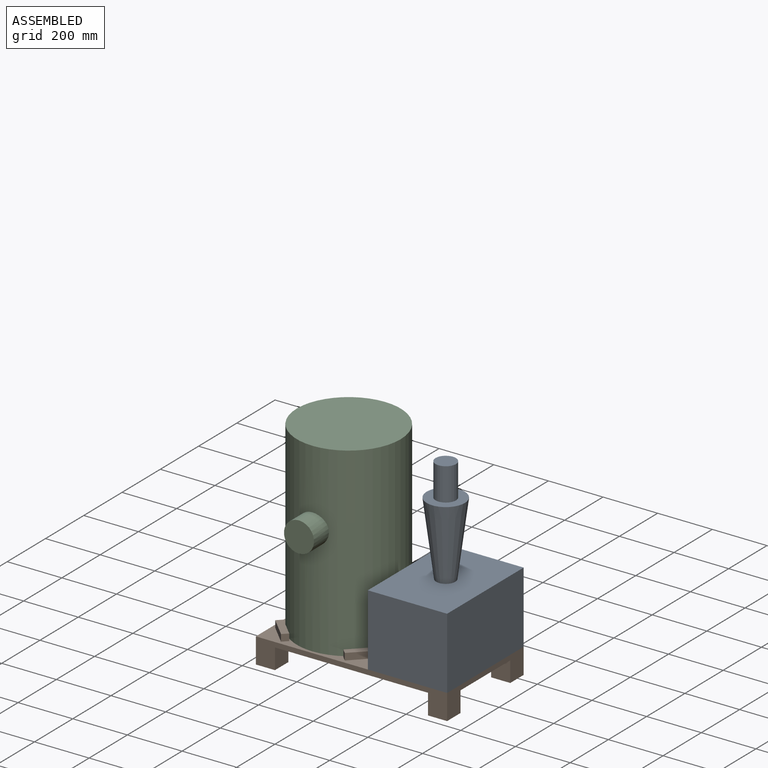
[diagram: assembled view]
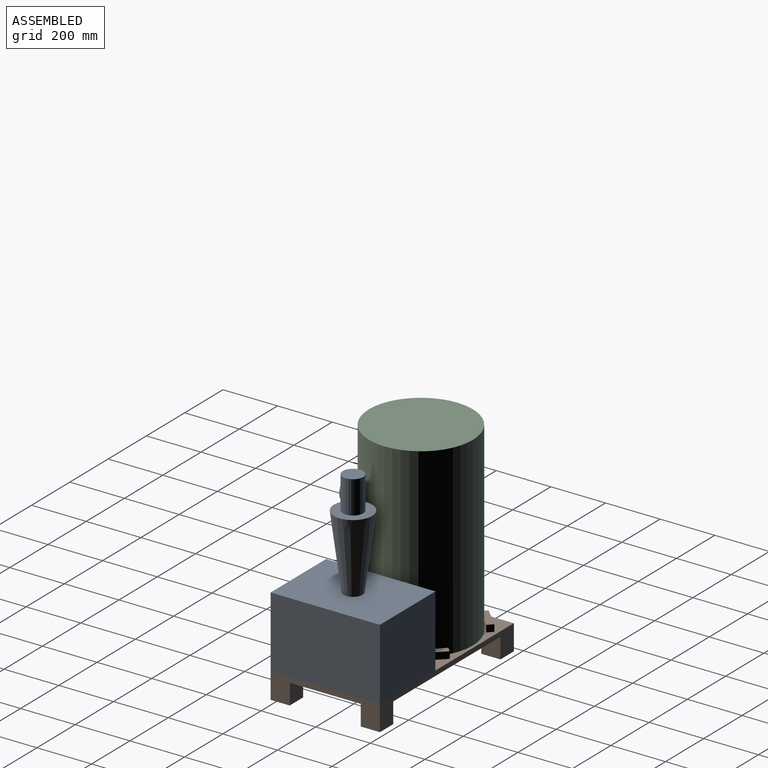
[diagram: assembled view, second angle]
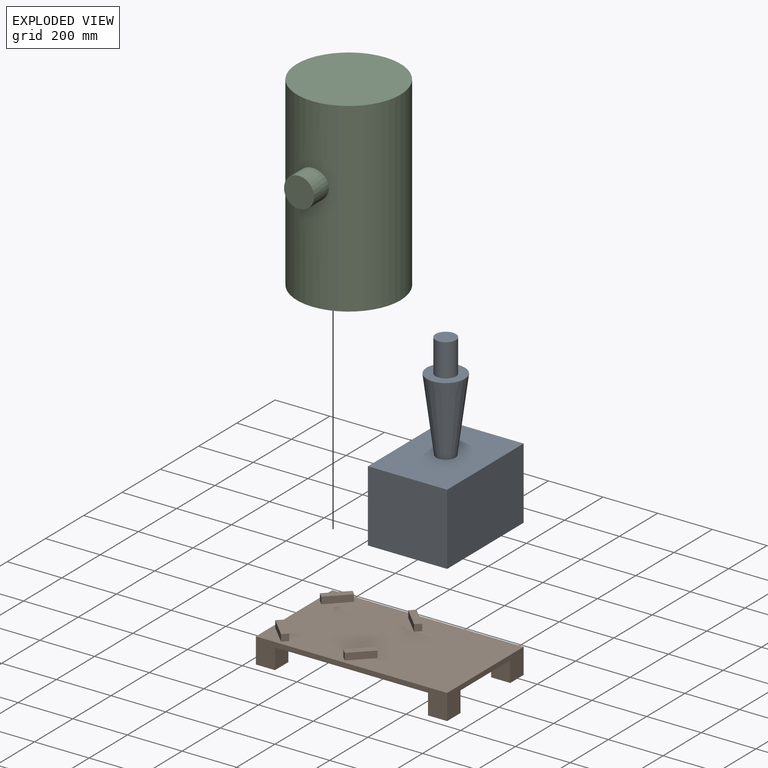
[diagram: exploded view]
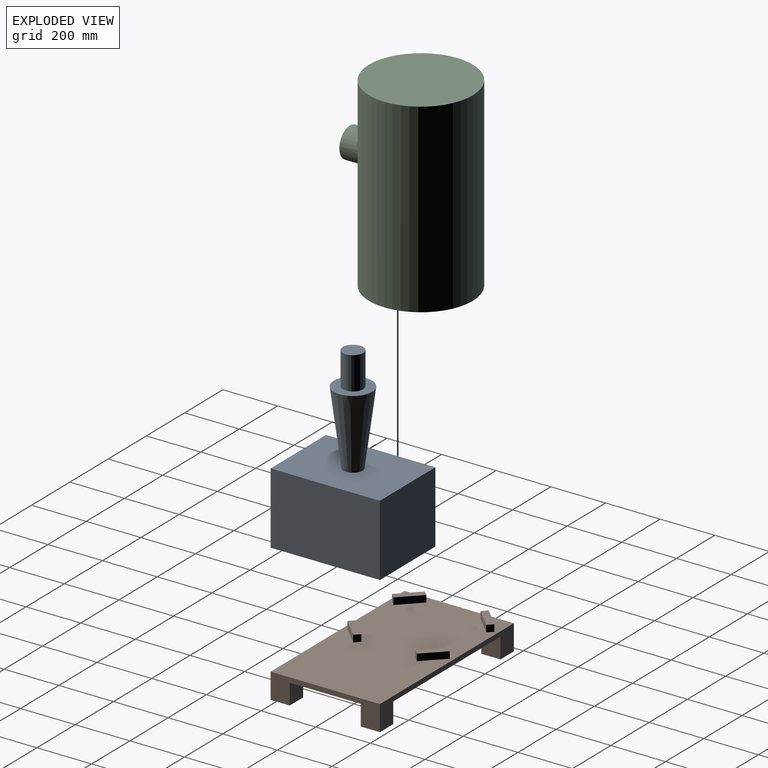
[diagram: exploded view, second angle]
ASSEMBLY  parts=3 mates=2
PART A: 10 faces, bbox 290x400x652 mm
  f0: plane 290x262mm, normal (0,1,0), area 75980mm2, adj f1,f3,f4,f5
  f1: plane 400x262mm, normal (-1,0,0), area 104800mm2, adj f0,f2,f4,f5
  f2: plane 290x262mm, normal (0,-1,0), area 75980mm2, adj f1,f3,f4,f5
  f3: plane 400x262mm, normal (1,0,0), area 104800mm2, adj f0,f2,f4,f5
  f4: plane 400x290mm, normal (0,0,1), area 112151.5mm2, adj f0,f1,f2,f3,f7
  f5: plane 400x290mm, normal (0,0,-1), area 116000mm2, adj f0,f1,f2,f3
  f6: plane 140x140mm, normal (0,0,1), area 10975.9mm2, adj f7,f8
  f7: cone r=70mm half-angle=7.4deg, axis (0,0,1), area 89809.3mm2, adj f4,f6
  f8: cylinder r=37.5mm len=120mm, axis (0,0,-1), area 28274.3mm2, adj f6,f9
  f9: plane 75x75mm, normal (0,0,1), area 4417.9mm2, adj f8
PART B: 38 faces, bbox 700x400x118 mm
  f0: plane 700x400mm, normal (0,0,1), area 270000mm2, adj f1,f2,f3,f4,f18,f19,f20,f21
  f1: plane 700x93mm, normal (0,1,0), area 23100mm2, adj f0,f2,f4,f5,f13,f14,f16,f17
  f2: plane 400x93mm, normal (-1,0,0), area 17700mm2, adj f0,f1,f3,f5,f6,f8,f15,f17
  f3: plane 700x93mm, normal (0,-1,0), area 23100mm2, adj f0,f2,f4,f5,f7,f8,f10,f11
  f4: plane 400x93mm, normal (1,0,0), area 17700mm2, adj f0,f1,f3,f5,f9,f11,f12,f14
  f5: plane 700x400mm, normal (0,0,-1), area 260400mm2, adj f1,f2,f3,f4,f6,f7,f9,f10
  f6: plane 75x70mm, normal (0,1,0), area 5250mm2, adj f2,f5,f7,f8
  f7: plane 75x70mm, normal (1,0,0), area 5250mm2, adj f3,f5,f6,f8
  f8: plane 70x70mm, normal (0,0,-1), area 4900mm2, adj f2,f3,f6,f7
  f9: plane 75x70mm, normal (0,1,0), area 5250mm2, adj f4,f5,f10,f11
  f10: plane 75x70mm, normal (-1,0,0), area 5250mm2, adj f3,f5,f9,f11
  f11: plane 70x70mm, normal (0,0,-1), area 4900mm2, adj f3,f4,f9,f10
  f12: plane 75x70mm, normal (0,-1,0), area 5250mm2, adj f4,f5,f13,f14
  f13: plane 75x70mm, normal (-1,0,0), area 5250mm2, adj f1,f5,f12,f14
  f14: plane 70x70mm, normal (0,0,-1), area 4900mm2, adj f1,f4,f12,f13
  f15: plane 75x70mm, normal (0,-1,0), area 5250mm2, adj f2,f5,f16,f17
  f16: plane 75x70mm, normal (1,0,0), area 5250mm2, adj f1,f5,f15,f17
  f17: plane 70x70mm, normal (0,0,-1), area 4900mm2, adj f1,f2,f15,f16
  f18: plane 70.71x70.71mm, normal (0.71,-0.71,0), area 2500mm2, adj f0,f19,f21,f22
  f19: plane 25x17.68mm, normal (0.71,0.71,0), area 625mm2, adj f0,f18,f20,f22
  f20: plane 70.71x70.71mm, normal (-0.71,0.71,0), area 2500mm2, adj f0,f19,f21,f22
  f21: plane 25x17.68mm, normal (-0.71,-0.71,0), area 625mm2, adj f0,f18,f20,f22
  f22: plane 88.39x88.39mm, normal (0,0,1), area 2500mm2, adj f18,f19,f20,f21
  f23: plane 25x17.68mm, normal (-0.71,0.71,0), area 625mm2, adj f0,f24,f26,f27
  f24: plane 70.71x70.71mm, normal (-0.71,-0.71,0), area 2500mm2, adj f0,f23,f25,f27
  f25: plane 25x17.68mm, normal (0.71,-0.71,0), area 625mm2, adj f0,f24,f26,f27
  f26: plane 70.71x70.71mm, normal (0.71,0.71,0), area 2500mm2, adj f0,f23,f25,f27
  f27: plane 88.39x88.39mm, normal (0,0,1), area 2500mm2, adj f23,f24,f25,f26
  f28: plane 25x17.68mm, normal (0.71,0.71,0), area 625mm2, adj f0,f29,f31,f32
  f29: plane 70.71x70.71mm, normal (-0.71,0.71,0), area 2500mm2, adj f0,f28,f30,f32
  f30: plane 25x17.68mm, normal (-0.71,-0.71,0), area 625mm2, adj f0,f29,f31,f32
  f31: plane 70.71x70.71mm, normal (0.71,-0.71,0), area 2500mm2, adj f0,f28,f30,f32
  f32: plane 88.39x88.39mm, normal (0,0,1), area 2500mm2, adj f28,f29,f30,f31
  f33: plane 70.71x70.71mm, normal (0.71,0.71,0), area 2500mm2, adj f0,f34,f36,f37
  f34: plane 25x17.68mm, normal (-0.71,0.71,0), area 625mm2, adj f0,f33,f35,f37
  f35: plane 70.71x70.71mm, normal (-0.71,-0.71,0), area 2500mm2, adj f0,f34,f36,f37
  f36: plane 25x17.68mm, normal (0.71,-0.71,0), area 625mm2, adj f0,f33,f35,f37
  f37: plane 88.39x88.39mm, normal (0,0,1), area 2500mm2, adj f33,f34,f35,f36
PART C: 5 faces, bbox 380x450x680 mm
  f0: cylinder r=190mm len=680mm, axis (0,0,-1), area 802177.5mm2, adj f1,f2,f3
  f1: plane 380x380mm, normal (0,0,1), area 113411.5mm2, adj f0
  f2: plane 380x380mm, normal (0,0,-1), area 113411.5mm2, adj f0
  f3: cylinder r=55mm len=110mm, axis (0,1,0), area 25587.7mm2, adj f0,f4
  f4: plane 110x110mm, normal (0,-1,0), area 9503.3mm2, adj f3
PLACE A t=(50,0,18)mm
PLACE B t=(50,0,18)mm
PLACE C t=(50,0,18)mm
MATE fastened C.f0 <-> B.f0  axis (0,0,-1) through (-150,0,18)mm
MATE fastened B.f0 <-> A.f5  axis (0,0,1) through (350,0,18)mm
